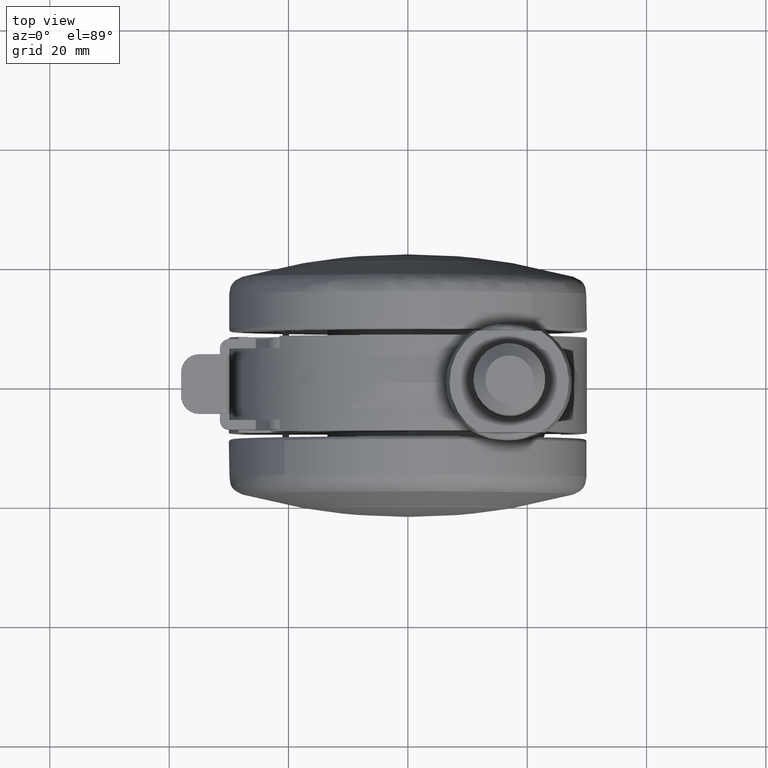
[diagram: clean part render]
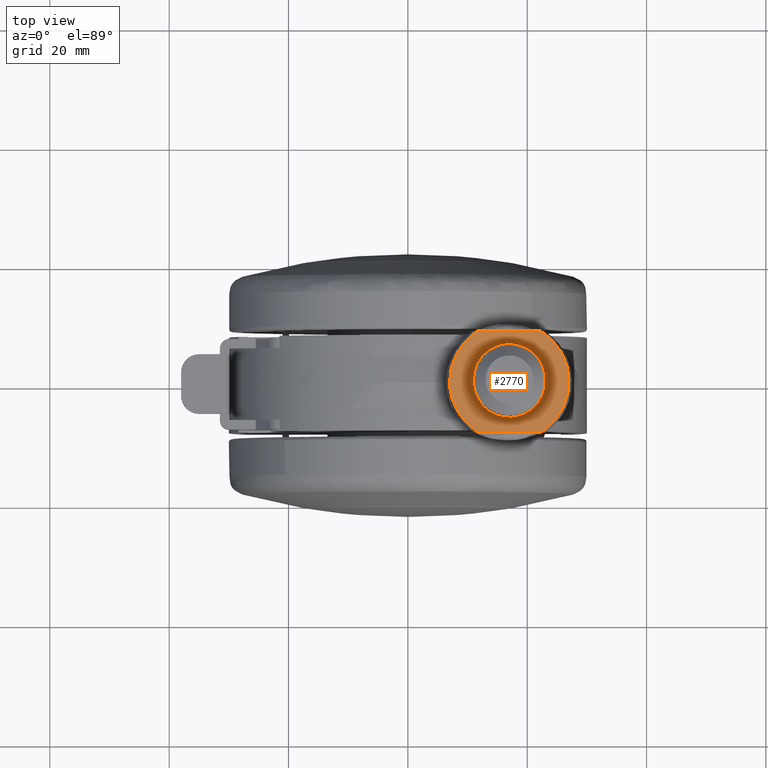
[diagram: same view with one face highlighted and labeled with its STEP entity id]
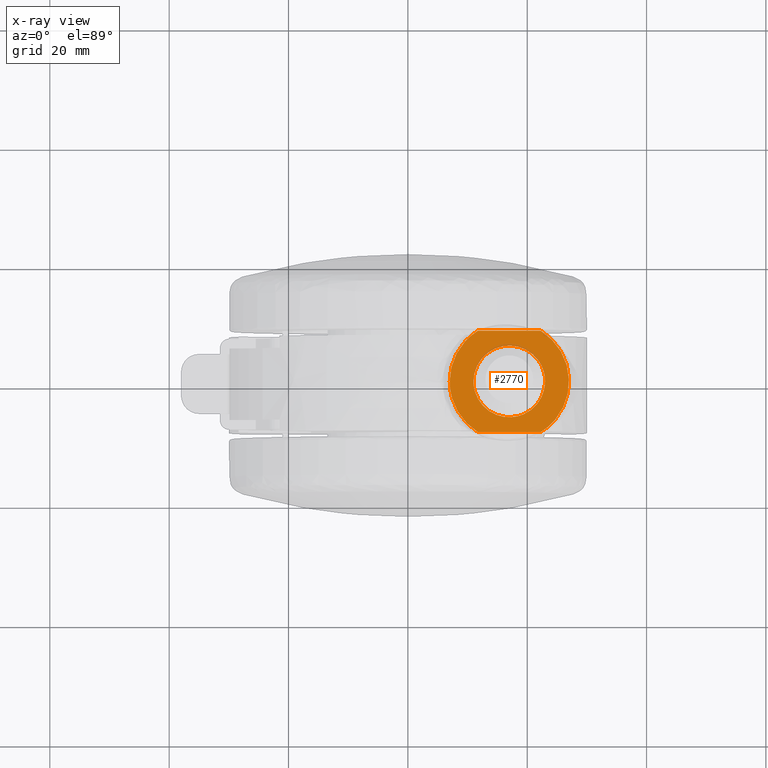
[diagram: x-ray of the same camera — body ghosted, the highlighted face saturated]
A machine part, top view. The second image highlights one B-rep face of the part: STEP entity #2770.
The next image is the same camera in x-ray: the body ghosted, the highlighted face saturated — about 2% of this face is hidden behind the body in this view.
In plain terms, the highlighted face is a freeform B-spline surface patch.
Its self-contained STEP definition (entity closure, byte-faithful):
#1570=CARTESIAN_POINT('',(17.366291237281821,-5.988808790526756,40.0));
#1571=VERTEX_POINT('',#1570);
#1577=CARTESIAN_POINT('',(23.0,0.0,40.0));
#1578=VERTEX_POINT('',#1577);
#1579=CARTESIAN_POINT('',(23.0,0.0,40.0));
#1580=CARTESIAN_POINT('',(23.0,-5.644236401296887,39.999999999999986));
#1581=CARTESIAN_POINT('',(17.366291237281821,-5.988808790526756,40.000000000000007));
#1589=(BOUNDED_CURVE()B_SPLINE_CURVE(2,(#1579,#1580,#1581),.UNSPECIFIED.,.F.,.U.)B_SPLINE_CURVE_WITH_KNOTS((3,3),(0.500000000000000,0.739332962237779),.UNSPECIFIED.)CURVE()GEOMETRIC_REPRESENTATION_ITEM()RATIONAL_B_SPLINE_CURVE((1.0,0.719603993288073,0.976072041664224))REPRESENTATION_ITEM(''));
#1590=EDGE_CURVE('',#1578,#1571,#1589,.T.);
#1592=CARTESIAN_POINT('',(22.616861472647130,2.109707846383540,40.0));
#1593=VERTEX_POINT('',#1592);
#1594=CARTESIAN_POINT('',(22.616861472647134,2.109707846383540,40.000000000000007));
#1595=CARTESIAN_POINT('',(22.999999999999996,1.089644316438200,40.0));
#1596=CARTESIAN_POINT('',(23.0,0.0,40.0));
#1604=(BOUNDED_CURVE()B_SPLINE_CURVE(2,(#1594,#1595,#1596),.UNSPECIFIED.,.F.,.U.)B_SPLINE_CURVE_WITH_KNOTS((3,3),(0.440284170896991,0.500000000000000),.UNSPECIFIED.)CURVE()GEOMETRIC_REPRESENTATION_ITEM()RATIONAL_B_SPLINE_CURVE((0.893499554633418,0.930038554399623,1.0))REPRESENTATION_ITEM(''));
#1605=EDGE_CURVE('',#1593,#1578,#1604,.T.);
#1655=CARTESIAN_POINT('',(11.0,0.0,40.0));
#1656=VERTEX_POINT('',#1655);
#1657=CARTESIAN_POINT('',(11.0,0.0,40.0));
#1658=CARTESIAN_POINT('',(11.000000000000002,6.0,39.999999999999993));
#1659=CARTESIAN_POINT('',(17.0,6.0,40.0));
#1660=CARTESIAN_POINT('',(21.155657574112606,6.000000000000001,40.0));
#1661=CARTESIAN_POINT('',(22.616861472647130,2.109707846383541,39.999999999999993));
#1669=(BOUNDED_CURVE()B_SPLINE_CURVE(2,(#1657,#1658,#1659,#1660,#1661),.UNSPECIFIED.,.F.,.U.)B_SPLINE_CURVE_WITH_KNOTS((3,2,3),(0.0,0.250000000000000,0.440284170896991),.UNSPECIFIED.)CURVE()GEOMETRIC_REPRESENTATION_ITEM()RATIONAL_B_SPLINE_CURVE((1.0,0.707106781186548,1.0,0.777068226786925,0.893499554633418))REPRESENTATION_ITEM(''));
#1670=EDGE_CURVE('',#1656,#1593,#1669,.T.);
#1672=CARTESIAN_POINT('',(17.366291237281821,-5.988808790526756,40.0));
#1673=CARTESIAN_POINT('',(17.183316579864414,-5.999999999999999,40.0));
#1674=CARTESIAN_POINT('',(17.0,-6.0,40.0));
#1675=CARTESIAN_POINT('',(11.000000000000002,-6.0,39.999999999999993));
#1676=CARTESIAN_POINT('',(11.0,0.0,40.0));
#1684=(BOUNDED_CURVE()B_SPLINE_CURVE(2,(#1672,#1673,#1674,#1675,#1676),.UNSPECIFIED.,.F.,.U.)B_SPLINE_CURVE_WITH_KNOTS((3,2,3),(0.739332962237780,0.750000000000000,1.0),.UNSPECIFIED.)CURVE()GEOMETRIC_REPRESENTATION_ITEM()RATIONAL_B_SPLINE_CURVE((0.976072041664226,0.987502787898475,1.0,0.707106781186548,1.0))REPRESENTATION_ITEM(''));
#1685=EDGE_CURVE('',#1571,#1656,#1684,.T.);
#2427=CARTESIAN_POINT('',(11.732173084377919,-8.500000000000000,40.0));
#2428=VERTEX_POINT('',#2427);
#2429=CARTESIAN_POINT('',(7.000001089943970,-0.000000148590190,40.000003510852672));
#2430=VERTEX_POINT('',#2429);
#2431=CARTESIAN_POINT('',(11.732173084377919,-8.500000000000000,40.0));
#2432=CARTESIAN_POINT('',(7.000000617372248,-5.567262539263475,40.000001755426339));
#2433=CARTESIAN_POINT('',(7.000001089943970,-0.000000148590190,40.000003510852679));
#2441=(BOUNDED_CURVE()B_SPLINE_CURVE(2,(#2431,#2432,#2433),.UNSPECIFIED.,.F.,.U.)B_SPLINE_CURVE_WITH_KNOTS((3,3),(0.0,0.499999992363138),.UNSPECIFIED.)CURVE()GEOMETRIC_REPRESENTATION_ITEM()RATIONAL_B_SPLINE_CURVE((1.0,0.873722695486162,0.999999996142551))REPRESENTATION_ITEM(''));
#2442=EDGE_CURVE('',#2428,#2430,#2441,.T.);
#2519=CARTESIAN_POINT('',(11.732173084377919,8.500000000000000,39.999999979401053));
#2520=VERTEX_POINT('',#2519);
#2521=CARTESIAN_POINT('',(7.000001089943968,-0.000000148590190,40.000003510852665));
#2522=CARTESIAN_POINT('',(7.000000451924094,5.567262436727948,40.000001745126852));
#2523=CARTESIAN_POINT('',(11.732173084377919,8.500000000000000,39.999999979401053));
#2531=(BOUNDED_CURVE()B_SPLINE_CURVE(2,(#2521,#2522,#2523),.UNSPECIFIED.,.F.,.U.)B_SPLINE_CURVE_WITH_KNOTS((3,3),(0.499999992363138,1.0),.UNSPECIFIED.)CURVE()GEOMETRIC_REPRESENTATION_ITEM()RATIONAL_B_SPLINE_CURVE((1.000000003857450,0.873722691628713,1.0))REPRESENTATION_ITEM(''));
#2532=EDGE_CURVE('',#2430,#2520,#2531,.T.);
#2591=CARTESIAN_POINT('',(22.267826915622049,8.500000000000000,40.0));
#2592=VERTEX_POINT('',#2591);
#2593=CARTESIAN_POINT('',(11.732173084377919,8.500000000000000,39.999999979401053));
#2594=CARTESIAN_POINT('',(22.267826915622049,8.500000000000000,40.0));
#2595=QUASI_UNIFORM_CURVE('',1,(#2593,#2594),.UNSPECIFIED.,.F.,.U.);
#2596=EDGE_CURVE('',#2520,#2592,#2595,.T.);
#2635=CARTESIAN_POINT('',(22.267826915622098,-8.500000000000000,39.999999979401053));
#2636=VERTEX_POINT('',#2635);
#2664=CARTESIAN_POINT('',(11.732173084377919,-8.500000000000000,40.0));
#2665=CARTESIAN_POINT('',(22.267826915622098,-8.500000000000000,39.999999979401053));
#2666=QUASI_UNIFORM_CURVE('',1,(#2664,#2665),.UNSPECIFIED.,.F.,.U.);
#2667=EDGE_CURVE('',#2428,#2636,#2666,.T.);
#2738=CARTESIAN_POINT('',(27.998999928472390,-9.349149967050700,40.0));
#2739=CARTESIAN_POINT('',(6.001000645677427,-9.349149967050700,40.0));
#2740=CARTESIAN_POINT('',(27.998999928472390,9.349150423026234,40.0));
#2741=CARTESIAN_POINT('',(6.001000645677427,9.349150423026234,40.0));
#2742=B_SPLINE_SURFACE_WITH_KNOTS('',1,1,((#2738,#2740),(#2739,#2741)),.UNSPECIFIED.,.F.,.F.,.U.,(2,2),(2,2),(0.0,21.997999282794961),(0.0,18.698300390076930),.UNSPECIFIED.);
#2743=CARTESIAN_POINT('',(22.267826915622049,8.500000000000000,40.0));
#2744=CARTESIAN_POINT('',(27.000000020647626,5.567262487995726,39.999999979401039));
#2745=CARTESIAN_POINT('',(27.000000020647619,0.0,39.999999979401053));
#2746=CARTESIAN_POINT('',(27.000000020647626,-5.567262487995699,39.999999979401039));
#2747=CARTESIAN_POINT('',(22.267826915622091,-8.499999999999989,39.999999979401053));
#2755=(BOUNDED_CURVE()B_SPLINE_CURVE(2,(#2743,#2744,#2745,#2746,#2747),.UNSPECIFIED.,.F.,.U.)B_SPLINE_CURVE_WITH_KNOTS((3,2,3),(0.0,0.500000000000000,1.0),.UNSPECIFIED.)CURVE()GEOMETRIC_REPRESENTATION_ITEM()RATIONAL_B_SPLINE_CURVE((1.0,0.873722693557437,1.0,0.873722693557437,1.0))REPRESENTATION_ITEM(''));
#2756=EDGE_CURVE('',#2592,#2636,#2755,.T.);
#2757=ORIENTED_EDGE('',*,*,#2756,.F.);
#2758=ORIENTED_EDGE('',*,*,#2596,.F.);
#2759=ORIENTED_EDGE('',*,*,#2532,.F.);
#2760=ORIENTED_EDGE('',*,*,#2442,.F.);
#2761=ORIENTED_EDGE('',*,*,#2667,.T.);
#2762=EDGE_LOOP('',(#2757,#2758,#2759,#2760,#2761));
#2763=FACE_OUTER_BOUND('',#2762,.T.);
#2764=ORIENTED_EDGE('',*,*,#1590,.T.);
#2765=ORIENTED_EDGE('',*,*,#1685,.T.);
#2766=ORIENTED_EDGE('',*,*,#1670,.T.);
#2767=ORIENTED_EDGE('',*,*,#1605,.T.);
#2768=EDGE_LOOP('',(#2764,#2765,#2766,#2767));
#2769=FACE_BOUND('',#2768,.T.);
#2770=ADVANCED_FACE('',(#2763,#2769),#2742,.F.);